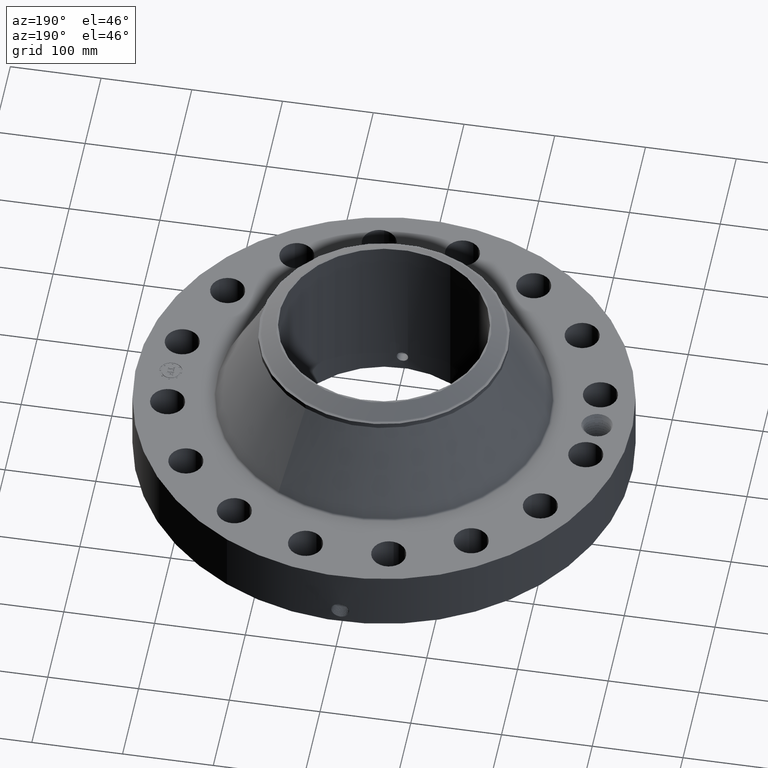
[diagram: clean part render]
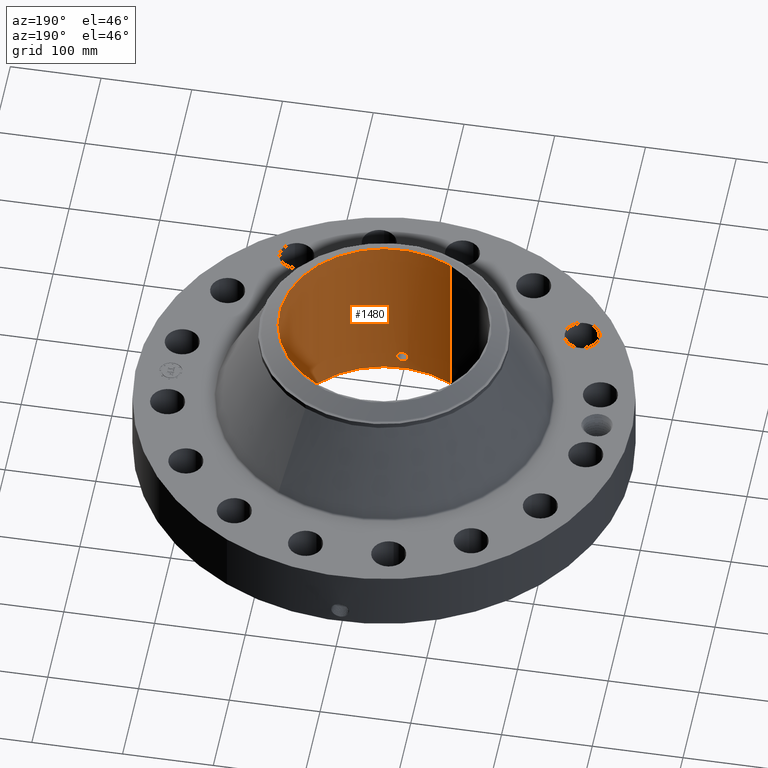
[diagram: same view with one face highlighted and labeled with its STEP entity id]
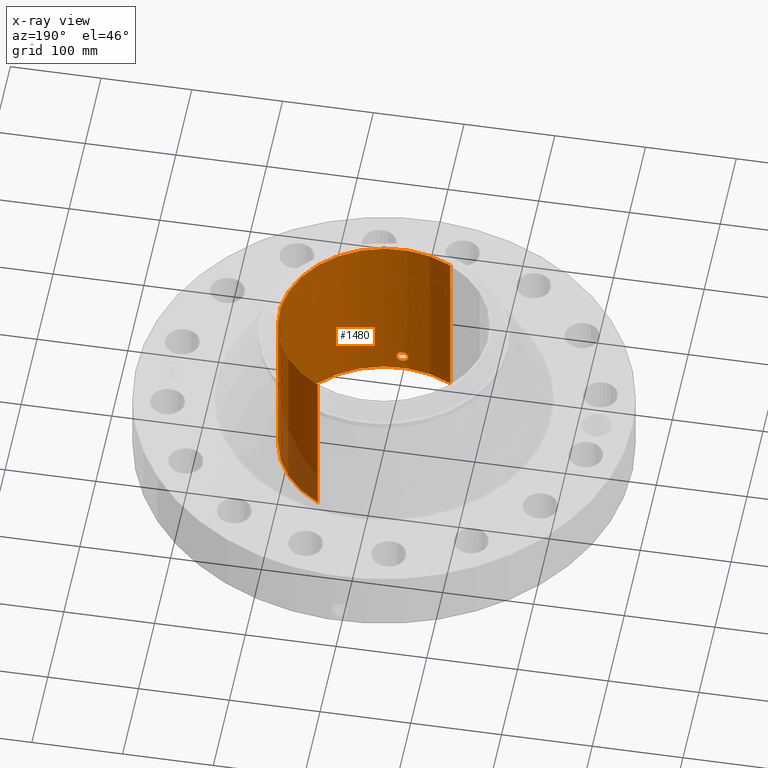
[diagram: x-ray of the same camera — body ghosted, the highlighted face saturated]
A machine part, auxiliary view. The second image highlights one B-rep face of the part: STEP entity #1480.
The next image is the same camera in x-ray: the body ghosted, the highlighted face saturated — about 7% of this face is hidden behind the body in this view.
In plain terms, the highlighted cylindrical surface (partial cylindrical patch) has radius 115.087 mm, axis along (0, 0, -1).
Its self-contained STEP definition (entity closure, byte-faithful):
#253=AXIS2_PLACEMENT_3D('Circle Axis2P3D',#251,#252,$) ;
#1411=AXIS2_PLACEMENT_3D('Cylinder Axis2P3D',#1408,#1409,#1410) ;
#1415=AXIS2_PLACEMENT_3D('Circle Axis2P3D',#1413,#1414,$) ;
#251=CARTESIAN_POINT('Axis2P3D Location',(0.,0.,0.250000000001)) ;
#255=CARTESIAN_POINT('Vertex',(2.17227711542,3.97632658794,0.250000000001)) ;
#257=CARTESIAN_POINT('Vertex',(-2.17227711542,-3.97632658794,0.250000000001)) ;
#1408=CARTESIAN_POINT('Axis2P3D Location',(0.,0.,3.87500000002)) ;
#1413=CARTESIAN_POINT('Axis2P3D Location',(0.,0.,7.50000000003)) ;
#1417=CARTESIAN_POINT('Vertex',(2.17227711542,3.97632658794,7.50000000003)) ;
#1419=CARTESIAN_POINT('Vertex',(-2.17227711542,-3.97632658794,7.50000000003)) ;
#1422=CARTESIAN_POINT('Line Origine',(2.17227711542,3.97632658794,3.87500000002)) ;
#1427=CARTESIAN_POINT('Line Origine',(-2.17227711542,-3.97632658794,3.87500000002)) ;
#1439=CARTESIAN_POINT('Control Point',(0.219395640473,-4.52568520261,0.820143615352)) ;
#1440=CARTESIAN_POINT('Control Point',(0.20692179747,-4.52628990812,0.797310398891)) ;
#1441=CARTESIAN_POINT('Control Point',(0.191478678785,-4.52699548081,0.776101997937)) ;
#1442=CARTESIAN_POINT('Control Point',(0.17334630235,-4.52774738713,0.757030980265)) ;
#1443=CARTESIAN_POINT('Control Point',(0.112144340373,-4.52992190758,0.707556376817)) ;
#1444=CARTESIAN_POINT('Control Point',(0.0349953647042,-4.53133468305,0.684029645062)) ;
#1445=CARTESIAN_POINT('Control Point',(-0.019546046311,-4.53144042093,0.682387721751)) ;
#1446=CARTESIAN_POINT('Control Point',(-0.124127171519,-4.52988594276,0.707522722777)) ;
#1447=CARTESIAN_POINT('Control Point',(-0.203169532661,-4.5266673525,0.780417563226)) ;
#1448=CARTESIAN_POINT('Control Point',(-0.232150948602,-4.52508220159,0.826623032548)) ;
#1449=CARTESIAN_POINT('Control Point',(-0.255830507542,-4.52377648326,0.904782893873)) ;
#1450=CARTESIAN_POINT('Control Point',(-0.248300479986,-4.5241913412,0.984180520403)) ;
#1451=CARTESIAN_POINT('Control Point',(-0.242066282375,-4.52453988756,1.01077137742)) ;
#1452=CARTESIAN_POINT('Control Point',(-0.232326354242,-4.52505834897,1.03618687187)) ;
#1453=CARTESIAN_POINT('Control Point',(-0.219395640473,-4.52568520261,1.05985638466)) ;
#1454=CARTESIAN_POINT('Vertex',(0.219395640473,-4.52568520261,0.820143615352)) ;
#1456=CARTESIAN_POINT('Vertex',(-0.219395640473,-4.52568520261,1.05985638466)) ;
#1460=CARTESIAN_POINT('Control Point',(-0.219395640473,-4.52568520261,1.05985638466)) ;
#1461=CARTESIAN_POINT('Control Point',(-0.206921797473,-4.52628990812,1.08268960111)) ;
#1462=CARTESIAN_POINT('Control Point',(-0.191478678792,-4.52699548081,1.10389800206)) ;
#1463=CARTESIAN_POINT('Control Point',(-0.173346302341,-4.52774738713,1.12296901975)) ;
#1464=CARTESIAN_POINT('Control Point',(-0.112144340375,-4.52992190758,1.17244362319)) ;
#1465=CARTESIAN_POINT('Control Point',(-0.0349953647229,-4.53133468305,1.19597035494)) ;
#1466=CARTESIAN_POINT('Control Point',(0.0195460463265,-4.53144042093,1.19761227825)) ;
#1467=CARTESIAN_POINT('Control Point',(0.124127171535,-4.52988594276,1.17247727722)) ;
#1468=CARTESIAN_POINT('Control Point',(0.203169532675,-4.5266673525,1.09958243677)) ;
#1469=CARTESIAN_POINT('Control Point',(0.232150948595,-4.52508220159,1.05337696748)) ;
#1470=CARTESIAN_POINT('Control Point',(0.255830507534,-4.52377648326,0.975217106175)) ;
#1471=CARTESIAN_POINT('Control Point',(0.248300479991,-4.5241913412,0.895819479664)) ;
#1472=CARTESIAN_POINT('Control Point',(0.242066282354,-4.52453988756,0.869228622534)) ;
#1473=CARTESIAN_POINT('Control Point',(0.232326354228,-4.52505834897,0.843813128113)) ;
#1474=CARTESIAN_POINT('Control Point',(0.219395640473,-4.52568520261,0.820143615352)) ;
#252=DIRECTION('Axis2P3D Direction',(0.,0.,-0.0393700787402)) ;
#1409=DIRECTION('Axis2P3D Direction',(0.,0.,-0.0393700787402)) ;
#1410=DIRECTION('Axis2P3D XDirection',(-0.0188750212049,-0.0345504945626,0.)) ;
#1414=DIRECTION('Axis2P3D Direction',(0.,0.,-0.0393700787402)) ;
#1423=DIRECTION('Vector Direction',(0.,0.,-0.0393700787402)) ;
#1428=DIRECTION('Vector Direction',(0.,0.,-0.0393700787402)) ;
#1424=VECTOR('Line Direction',#1423,0.0393700787402) ;
#1429=VECTOR('Line Direction',#1428,0.0393700787402) ;
#1433=ORIENTED_EDGE('',*,*,#1421,.F.) ;
#1434=ORIENTED_EDGE('',*,*,#1426,.T.) ;
#1435=ORIENTED_EDGE('',*,*,#259,.T.) ;
#1436=ORIENTED_EDGE('',*,*,#1431,.F.) ;
#1477=ORIENTED_EDGE('',*,*,#1458,.F.) ;
#1478=ORIENTED_EDGE('',*,*,#1475,.F.) ;
#1479=FACE_BOUND('',#1476,.T.) ;
#1480=ADVANCED_FACE('PartBody',(#1437,#1479),#1412,.F.) ;
#1438=B_SPLINE_CURVE_WITH_KNOTS('',5,(#1439,#1440,#1441,#1442,#1443,#1444,#1445,#1446,#1447,#1448,#1449,#1450,#1451,#1452,#1453),.UNSPECIFIED.,.F.,.U.,(6,3,3,3,6),(0.,4.67428396222,14.021847278,23.3718191646,28.2173048718),.UNSPECIFIED.) ;
#1459=B_SPLINE_CURVE_WITH_KNOTS('',5,(#1460,#1461,#1462,#1463,#1464,#1465,#1466,#1467,#1468,#1469,#1470,#1471,#1472,#1473,#1474),.UNSPECIFIED.,.F.,.U.,(6,3,3,3,6),(0.,4.67428396116,14.0218472754,23.3718191639,28.2173048658),.UNSPECIFIED.) ;
#254=CIRCLE('generated circle',#253,4.53100000002) ;
#1416=CIRCLE('generated circle',#1415,4.53100000002) ;
#1412=CYLINDRICAL_SURFACE('generated cylinder',#1411,4.53100000002) ;
#259=EDGE_CURVE('',#256,#258,#254,.T.) ;
#1421=EDGE_CURVE('',#1418,#1420,#1416,.T.) ;
#1426=EDGE_CURVE('',#1418,#256,#1425,.T.) ;
#1431=EDGE_CURVE('',#1420,#258,#1430,.T.) ;
#1458=EDGE_CURVE('',#1455,#1457,#1438,.T.) ;
#1475=EDGE_CURVE('',#1457,#1455,#1459,.T.) ;
#1432=EDGE_LOOP('',(#1433,#1434,#1435,#1436)) ;
#1476=EDGE_LOOP('',(#1477,#1478)) ;
#1437=FACE_OUTER_BOUND('',#1432,.T.) ;
#1425=LINE('Line',#1422,#1424) ;
#1430=LINE('Line',#1427,#1429) ;
#256=VERTEX_POINT('',#255) ;
#258=VERTEX_POINT('',#257) ;
#1418=VERTEX_POINT('',#1417) ;
#1420=VERTEX_POINT('',#1419) ;
#1455=VERTEX_POINT('',#1454) ;
#1457=VERTEX_POINT('',#1456) ;